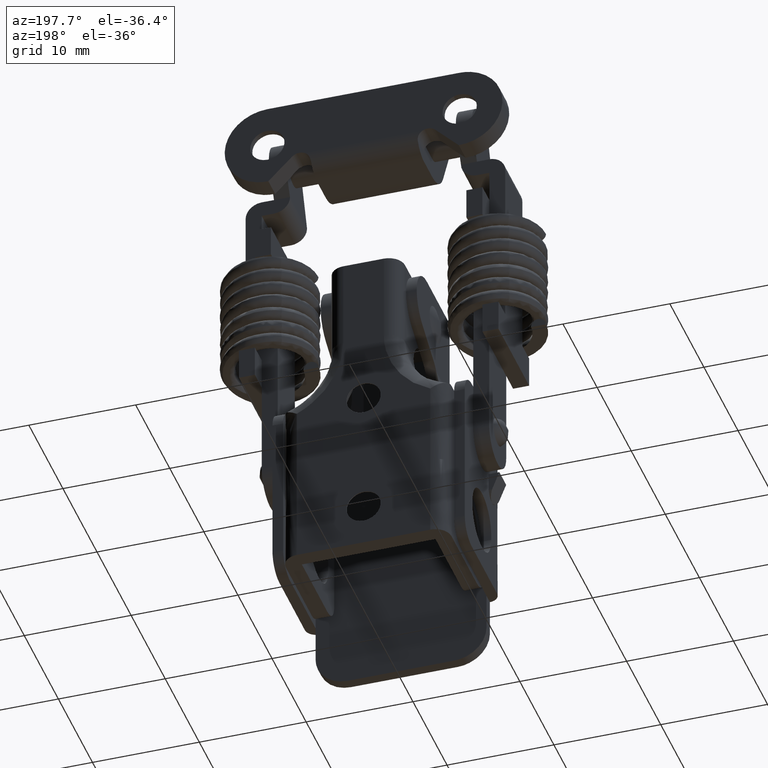
[diagram: clean part render]
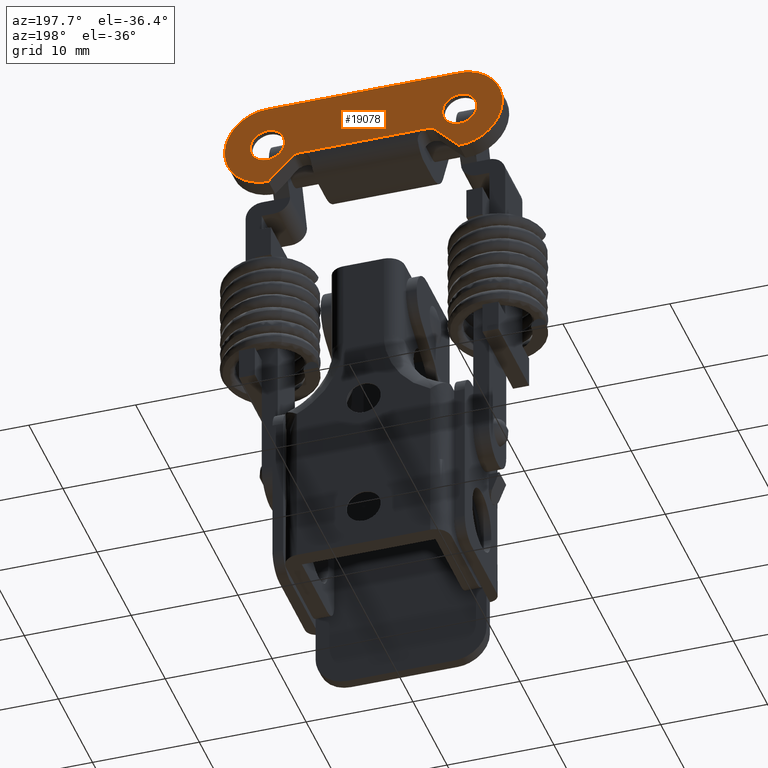
[diagram: same view with one face highlighted and labeled with its STEP entity id]
A machine part, auxiliary view. The second image highlights one B-rep face of the part: STEP entity #19078.
In plain terms, the highlighted face is a freeform B-spline surface patch.
Its self-contained STEP definition (entity closure, byte-faithful):
#17533=CARTESIAN_POINT('',(4.500000000000000,7.402984322529175,-0.097677663323814));
#17534=VERTEX_POINT('',#17533);
#17540=CARTESIAN_POINT('',(4.500000000000000,9.0,-1.600000000000000));
#17541=VERTEX_POINT('',#17540);
#17542=CARTESIAN_POINT('',(4.500000000000000,9.0,-1.600000000000000));
#17543=CARTESIAN_POINT('',(4.500000000000000,7.494870293079380,-1.600000000000000));
#17544=CARTESIAN_POINT('',(4.500000000000000,7.402984322529175,-0.097677663323814));
#17552=(BOUNDED_CURVE()B_SPLINE_CURVE(2,(#17542,#17543,#17544),.UNSPECIFIED.,.F.,.U.)B_SPLINE_CURVE_WITH_KNOTS((3,3),(0.500000000000000,0.739332962227266),.UNSPECIFIED.)CURVE()GEOMETRIC_REPRESENTATION_ITEM()RATIONAL_B_SPLINE_CURVE((1.0,0.719603993300391,0.976072041641691))REPRESENTATION_ITEM(''));
#17553=EDGE_CURVE('',#17541,#17534,#17552,.T.);
#17555=CARTESIAN_POINT('',(4.500000000000000,9.0,1.600000000000000));
#17556=VERTEX_POINT('',#17555);
#17557=CARTESIAN_POINT('',(4.500000000000000,9.0,1.600000000000000));
#17558=CARTESIAN_POINT('',(4.500000000000000,10.599999999999998,1.600000000000000));
#17559=CARTESIAN_POINT('',(4.500000000000000,10.600000000000000,0.0));
#17560=CARTESIAN_POINT('',(4.500000000000000,10.599999999999998,-1.600000000000000));
#17561=CARTESIAN_POINT('',(4.500000000000000,9.0,-1.600000000000000));
#17569=(BOUNDED_CURVE()B_SPLINE_CURVE(2,(#17557,#17558,#17559,#17560,#17561),.UNSPECIFIED.,.F.,.U.)B_SPLINE_CURVE_WITH_KNOTS((3,2,3),(0.0,0.250000000000000,0.500000000000000),.UNSPECIFIED.)CURVE()GEOMETRIC_REPRESENTATION_ITEM()RATIONAL_B_SPLINE_CURVE((1.0,0.707106781186548,1.0,0.707106781186548,1.0))REPRESENTATION_ITEM(''));
#17570=EDGE_CURVE('',#17556,#17541,#17569,.T.);
#17572=CARTESIAN_POINT('',(4.500000000000000,8.437411240963915,1.497829726039058));
#17573=VERTEX_POINT('',#17572);
#17574=CARTESIAN_POINT('',(4.500000000000000,8.437411240963915,1.497829726039057));
#17575=CARTESIAN_POINT('',(4.500000000000000,8.709428182282624,1.600000000000001));
#17576=CARTESIAN_POINT('',(4.500000000000000,9.0,1.600000000000000));
#17584=(BOUNDED_CURVE()B_SPLINE_CURVE(2,(#17574,#17575,#17576),.UNSPECIFIED.,.F.,.U.)B_SPLINE_CURVE_WITH_KNOTS((3,3),(0.940284170896891,1.0),.UNSPECIFIED.)CURVE()GEOMETRIC_REPRESENTATION_ITEM()RATIONAL_B_SPLINE_CURVE((0.893499554633296,0.930038554399506,1.0))REPRESENTATION_ITEM(''));
#17585=EDGE_CURVE('',#17573,#17556,#17584,.T.);
#17625=CARTESIAN_POINT('',(4.500000000000000,7.402984322529175,-0.097677663323814));
#17626=CARTESIAN_POINT('',(4.500000000000000,7.400000000000000,-0.048884421345976));
#17627=CARTESIAN_POINT('',(4.500000000000000,7.400000000000000,0.0));
#17628=CARTESIAN_POINT('',(4.500000000000001,7.400000000000001,1.108175353095948));
#17629=CARTESIAN_POINT('',(4.500000000000000,8.437411240963915,1.497829726039057));
#17637=(BOUNDED_CURVE()B_SPLINE_CURVE(2,(#17625,#17626,#17627,#17628,#17629),.UNSPECIFIED.,.F.,.U.)B_SPLINE_CURVE_WITH_KNOTS((3,2,3),(0.739332962227265,0.750000000000000,0.940284170896891),.UNSPECIFIED.)CURVE()GEOMETRIC_REPRESENTATION_ITEM()RATIONAL_B_SPLINE_CURVE((0.976072041641690,0.987502787886156,1.0,0.777068226787042,0.893499554633296))REPRESENTATION_ITEM(''));
#17638=EDGE_CURVE('',#17534,#17573,#17637,.T.);
#18035=CARTESIAN_POINT('',(4.500000000000000,-10.597015677470830,-0.097677663323814));
#18036=VERTEX_POINT('',#18035);
#18042=CARTESIAN_POINT('',(4.500000000000000,-9.0,-1.600000000000000));
#18043=VERTEX_POINT('',#18042);
#18044=CARTESIAN_POINT('',(4.500000000000000,-9.0,-1.600000000000000));
#18045=CARTESIAN_POINT('',(4.500000000000000,-10.505129706920616,-1.600000000000000));
#18046=CARTESIAN_POINT('',(4.500000000000000,-10.597015677470822,-0.097677663323814));
#18054=(BOUNDED_CURVE()B_SPLINE_CURVE(2,(#18044,#18045,#18046),.UNSPECIFIED.,.F.,.U.)B_SPLINE_CURVE_WITH_KNOTS((3,3),(0.500000000000000,0.739332962227266),.UNSPECIFIED.)CURVE()GEOMETRIC_REPRESENTATION_ITEM()RATIONAL_B_SPLINE_CURVE((1.0,0.719603993300391,0.976072041641691))REPRESENTATION_ITEM(''));
#18055=EDGE_CURVE('',#18043,#18036,#18054,.T.);
#18057=CARTESIAN_POINT('',(4.500000000000000,-7.411184757839951,0.188854775634363));
#18058=VERTEX_POINT('',#18057);
#18059=CARTESIAN_POINT('',(4.500000000000000,-7.411184757839951,0.188854775634363));
#18060=CARTESIAN_POINT('',(4.500000000000001,-7.400000000000000,0.094758591628546));
#18061=CARTESIAN_POINT('',(4.500000000000000,-7.400000000000000,0.0));
#18062=CARTESIAN_POINT('',(4.500000000000000,-7.400000000000000,-1.600000000000000));
#18063=CARTESIAN_POINT('',(4.500000000000000,-9.0,-1.600000000000000));
#18071=(BOUNDED_CURVE()B_SPLINE_CURVE(2,(#18059,#18060,#18061,#18062,#18063),.UNSPECIFIED.,.F.,.U.)B_SPLINE_CURVE_WITH_KNOTS((3,2,3),(0.229562473476596,0.250000000000000,0.500000000000000),.UNSPECIFIED.)CURVE()GEOMETRIC_REPRESENTATION_ITEM()RATIONAL_B_SPLINE_CURVE((0.956026754111349,0.976055948287899,1.0,0.707106781186548,1.0))REPRESENTATION_ITEM(''));
#18072=EDGE_CURVE('',#18058,#18043,#18071,.T.);
#18102=CARTESIAN_POINT('',(4.500000000000000,-9.0,1.600000000000000));
#18103=VERTEX_POINT('',#18102);
#18104=CARTESIAN_POINT('',(4.500000000000000,-9.0,1.600000000000000));
#18105=CARTESIAN_POINT('',(4.500000000000001,-7.578920758808467,1.599999999999999));
#18106=CARTESIAN_POINT('',(4.500000000000000,-7.411184757839951,0.188854775634363));
#18114=(BOUNDED_CURVE()B_SPLINE_CURVE(2,(#18104,#18105,#18106),.UNSPECIFIED.,.F.,.U.)B_SPLINE_CURVE_WITH_KNOTS((3,3),(0.0,0.229562473476596),.UNSPECIFIED.)CURVE()GEOMETRIC_REPRESENTATION_ITEM()RATIONAL_B_SPLINE_CURVE((1.0,0.731050832898648,0.956026754111349))REPRESENTATION_ITEM(''));
#18115=EDGE_CURVE('',#18103,#18058,#18114,.T.);
#18117=CARTESIAN_POINT('',(4.500000000000000,-10.597015677470829,-0.097677663323814));
#18118=CARTESIAN_POINT('',(4.500000000000001,-10.599999999999996,-0.048884421345976));
#18119=CARTESIAN_POINT('',(4.500000000000000,-10.600000000000000,0.0));
#18120=CARTESIAN_POINT('',(4.500000000000000,-10.599999999999998,1.600000000000000));
#18121=CARTESIAN_POINT('',(4.500000000000000,-9.0,1.600000000000000));
#18129=(BOUNDED_CURVE()B_SPLINE_CURVE(2,(#18117,#18118,#18119,#18120,#18121),.UNSPECIFIED.,.F.,.U.)B_SPLINE_CURVE_WITH_KNOTS((3,2,3),(0.739332962227265,0.750000000000000,1.0),.UNSPECIFIED.)CURVE()GEOMETRIC_REPRESENTATION_ITEM()RATIONAL_B_SPLINE_CURVE((0.976072041641690,0.987502787886156,1.0,0.707106781186548,1.0))REPRESENTATION_ITEM(''));
#18130=EDGE_CURVE('',#18036,#18103,#18129,.T.);
#18191=CARTESIAN_POINT('',(4.499999999999949,6.0,-1.499999999999856));
#18192=VERTEX_POINT('',#18191);
#18220=CARTESIAN_POINT('',(4.499999999999949,-6.0,-1.499999999999858));
#18221=VERTEX_POINT('',#18220);
#18222=CARTESIAN_POINT('',(4.499999999999949,-6.0,-1.499999999999858));
#18223=CARTESIAN_POINT('',(4.499999999999949,6.0,-1.499999999999856));
#18224=QUASI_UNIFORM_CURVE('',1,(#18222,#18223),.UNSPECIFIED.,.F.,.U.);
#18225=EDGE_CURVE('',#18221,#18192,#18224,.T.);
#18743=CARTESIAN_POINT('',(4.499999999999949,-9.0,4.0));
#18744=VERTEX_POINT('',#18743);
#18745=CARTESIAN_POINT('',(4.499999999999949,-8.913054958328271,-3.999054958328120));
#18746=VERTEX_POINT('',#18745);
#18747=CARTESIAN_POINT('',(4.499999999999949,-9.0,3.999999999999999));
#18748=CARTESIAN_POINT('',(4.499999999999949,-11.328764306391401,3.999999999999999));
#18749=CARTESIAN_POINT('',(4.499999999999949,-12.478502530052740,1.974846867080248));
#18750=CARTESIAN_POINT('',(4.499999999999949,-13.628240753714083,-0.050306265839503));
#18751=CARTESIAN_POINT('',(4.499999999999949,-12.434754911802690,-2.049989925791664));
#18752=CARTESIAN_POINT('',(4.499999999999949,-11.241269069891292,-4.049673585743826));
#18753=CARTESIAN_POINT('',(4.499999999999949,-8.913054958328273,-3.999054958328118));
#18761=(BOUNDED_CURVE()B_SPLINE_CURVE(2,(#18747,#18748,#18749,#18750,#18751,#18752,#18753),.UNSPECIFIED.,.F.,.U.)B_SPLINE_CURVE_WITH_KNOTS((3,2,2,3),(0.0,0.333333333333333,0.666666666666667,1.0),.UNSPECIFIED.)CURVE()GEOMETRIC_REPRESENTATION_ITEM()RATIONAL_B_SPLINE_CURVE((1.0,0.864208226288683,1.0,0.864208226288683,1.0,0.864208226288683,1.0))REPRESENTATION_ITEM(''));
#18762=EDGE_CURVE('',#18744,#18746,#18761,.T.);
#18803=CARTESIAN_POINT('',(4.499999999999949,9.0,4.0));
#18804=VERTEX_POINT('',#18803);
#18805=CARTESIAN_POINT('',(4.499999999999949,9.0,4.0));
#18806=CARTESIAN_POINT('',(4.499999999999949,-9.0,4.0));
#18807=QUASI_UNIFORM_CURVE('',1,(#18805,#18806),.UNSPECIFIED.,.F.,.U.);
#18808=EDGE_CURVE('',#18804,#18744,#18807,.T.);
#18844=CARTESIAN_POINT('',(4.499999999999949,8.913054958328271,-3.999054958328115));
#18845=VERTEX_POINT('',#18844);
#18846=CARTESIAN_POINT('',(4.499999999999949,8.913054958328269,-3.999054958328117));
#18847=CARTESIAN_POINT('',(4.499999999999949,11.241269069891288,-4.049673585743825));
#18848=CARTESIAN_POINT('',(4.499999999999949,12.434754911802690,-2.049989925791666));
#18849=CARTESIAN_POINT('',(4.499999999999949,13.628240753714083,-0.050306265839507));
#18850=CARTESIAN_POINT('',(4.499999999999949,12.478502530052740,1.974846867080246));
#18851=CARTESIAN_POINT('',(4.499999999999949,11.328764306391403,4.000000000000001));
#18852=CARTESIAN_POINT('',(4.499999999999949,9.0,4.000000000000001));
#18860=(BOUNDED_CURVE()B_SPLINE_CURVE(2,(#18846,#18847,#18848,#18849,#18850,#18851,#18852),.UNSPECIFIED.,.F.,.U.)B_SPLINE_CURVE_WITH_KNOTS((3,2,2,3),(0.0,0.333333333333333,0.666666666666667,1.0),.UNSPECIFIED.)CURVE()GEOMETRIC_REPRESENTATION_ITEM()RATIONAL_B_SPLINE_CURVE((1.0,0.864208226288683,1.0,0.864208226288683,1.0,0.864208226288683,1.0))REPRESENTATION_ITEM(''));
#18861=EDGE_CURVE('',#18845,#18804,#18860,.T.);
#18927=CARTESIAN_POINT('',(4.499999999999949,-6.719288205730201,-1.805288205730155));
#18928=VERTEX_POINT('',#18927);
#18929=CARTESIAN_POINT('',(4.499999999999949,-6.0,-1.499999999999860));
#18930=CARTESIAN_POINT('',(4.499999999999950,-6.424430990663023,-1.499999999999860));
#18931=CARTESIAN_POINT('',(4.499999999999949,-6.719288205730199,-1.805288205730157));
#18939=(BOUNDED_CURVE()B_SPLINE_CURVE(2,(#18929,#18930,#18931),.UNSPECIFIED.,.F.,.U.)CURVE()GEOMETRIC_REPRESENTATION_ITEM()QUASI_UNIFORM_CURVE()RATIONAL_B_SPLINE_CURVE((1.0,0.920519362715881,1.0))REPRESENTATION_ITEM(''));
#18940=EDGE_CURVE('',#18221,#18928,#18939,.T.);
#18962=CARTESIAN_POINT('',(4.499999999999949,-8.913054958328271,-3.999054958328120));
#18963=CARTESIAN_POINT('',(4.499999999999949,-6.719288205730201,-1.805288205730155));
#18964=QUASI_UNIFORM_CURVE('',1,(#18962,#18963),.UNSPECIFIED.,.F.,.U.);
#18965=EDGE_CURVE('',#18746,#18928,#18964,.T.);
#18976=CARTESIAN_POINT('',(4.499999999999949,6.719288205731800,-1.805288205731810));
#18977=VERTEX_POINT('',#18976);
#18990=CARTESIAN_POINT('',(4.499999999999949,6.719288205731800,-1.805288205731810));
#18991=CARTESIAN_POINT('',(4.499999999999949,8.913054958328271,-3.999054958328115));
#18992=QUASI_UNIFORM_CURVE('',1,(#18990,#18991),.UNSPECIFIED.,.F.,.U.);
#18993=EDGE_CURVE('',#18977,#18845,#18992,.T.);
#19018=CARTESIAN_POINT('',(4.499999999999949,6.719288205731798,-1.805288205731812));
#19019=CARTESIAN_POINT('',(4.499999999999949,6.424430990664382,-1.499999999999860));
#19020=CARTESIAN_POINT('',(4.499999999999949,6.0,-1.499999999999860));
#19028=(BOUNDED_CURVE()B_SPLINE_CURVE(2,(#19018,#19019,#19020),.UNSPECIFIED.,.F.,.U.)CURVE()GEOMETRIC_REPRESENTATION_ITEM()QUASI_UNIFORM_CURVE()RATIONAL_B_SPLINE_CURVE((1.0,0.920519362715431,1.0))REPRESENTATION_ITEM(''));
#19029=EDGE_CURVE('',#18977,#18192,#19028,.T.);
#19051=CARTESIAN_POINT('',(4.500000000000000,-14.298439835125210,4.399552779664769));
#19052=CARTESIAN_POINT('',(4.500000000000000,14.298440764758981,4.399552779664769));
#19053=CARTESIAN_POINT('',(4.500000000000000,-14.298439835125210,-4.398607952544262));
#19054=CARTESIAN_POINT('',(4.500000000000000,14.298440764758981,-4.398607952544262));
#19055=B_SPLINE_SURFACE_WITH_KNOTS('',1,1,((#19051,#19053),(#19052,#19054)),.UNSPECIFIED.,.F.,.F.,.U.,(2,2),(2,2),(0.0,28.596880599884191),(0.0,8.798160732209031),.UNSPECIFIED.);
#19056=ORIENTED_EDGE('',*,*,#18940,.F.);
#19057=ORIENTED_EDGE('',*,*,#18225,.T.);
#19058=ORIENTED_EDGE('',*,*,#19029,.F.);
#19059=ORIENTED_EDGE('',*,*,#18993,.T.);
#19060=ORIENTED_EDGE('',*,*,#18861,.T.);
#19061=ORIENTED_EDGE('',*,*,#18808,.T.);
#19062=ORIENTED_EDGE('',*,*,#18762,.T.);
#19063=ORIENTED_EDGE('',*,*,#18965,.T.);
#19064=EDGE_LOOP('',(#19056,#19057,#19058,#19059,#19060,#19061,#19062,#19063));
#19065=FACE_OUTER_BOUND('',#19064,.T.);
#19066=ORIENTED_EDGE('',*,*,#17570,.T.);
#19067=ORIENTED_EDGE('',*,*,#17553,.T.);
#19068=ORIENTED_EDGE('',*,*,#17638,.T.);
#19069=ORIENTED_EDGE('',*,*,#17585,.T.);
#19070=EDGE_LOOP('',(#19066,#19067,#19068,#19069));
#19071=FACE_BOUND('',#19070,.T.);
#19072=ORIENTED_EDGE('',*,*,#18055,.T.);
#19073=ORIENTED_EDGE('',*,*,#18130,.T.);
#19074=ORIENTED_EDGE('',*,*,#18115,.T.);
#19075=ORIENTED_EDGE('',*,*,#18072,.T.);
#19076=EDGE_LOOP('',(#19072,#19073,#19074,#19075));
#19077=FACE_BOUND('',#19076,.T.);
#19078=ADVANCED_FACE('',(#19065,#19071,#19077),#19055,.F.);